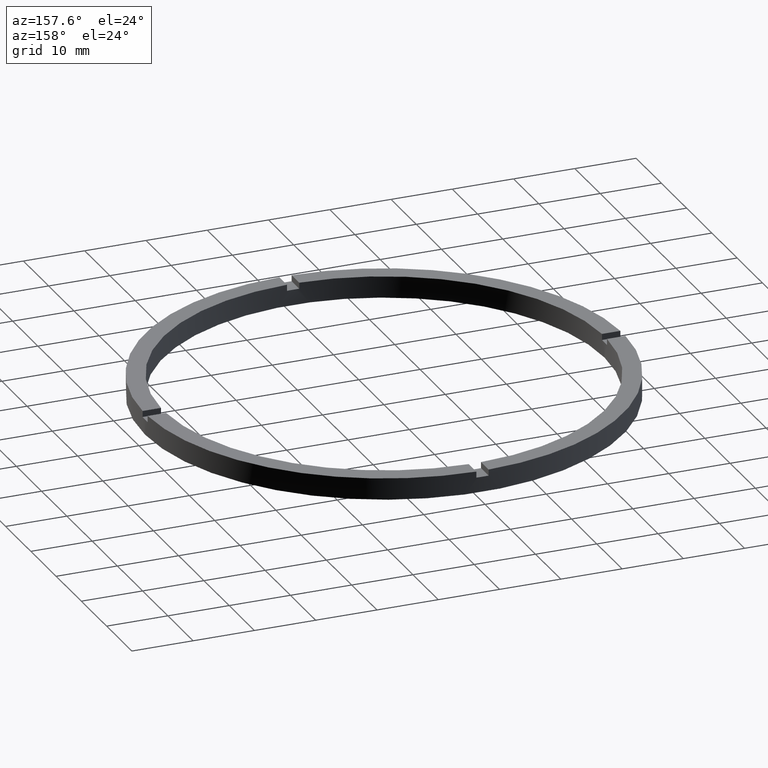
[diagram: clean part render]
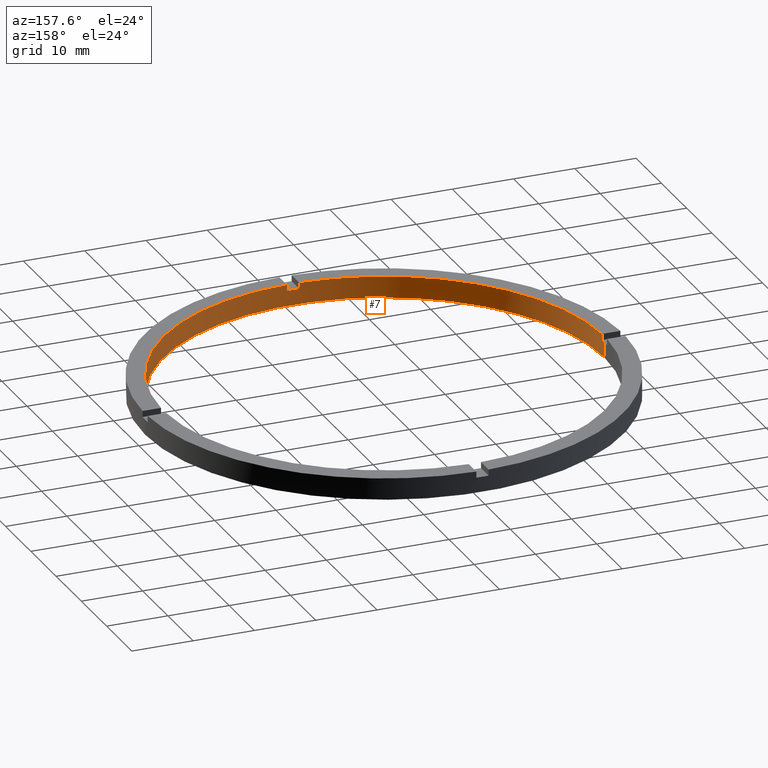
[diagram: same view with one face highlighted and labeled with its STEP entity id]
A machine part, auxiliary view. The second image highlights one B-rep face of the part: STEP entity #7.
In plain terms, the highlighted cylindrical surface (partial cylindrical patch) has radius 36 mm, axis along (-0, -0, -1).
Its self-contained STEP definition (entity closure, byte-faithful):
#4 = EDGE_CURVE ( 'NONE', #248, #113, #143, .T. ) ;
#7 = ADVANCED_FACE ( 'NONE', ( #655 ), #149, .F. ) ;
#23 = EDGE_CURVE ( 'NONE', #488, #410, #404, .T. ) ;
#40 = VECTOR ( 'NONE', #359, 1000.000000000000000 ) ;
#49 = DIRECTION ( 'NONE',  ( -0.000000000000000000, -0.000000000000000000, -1.000000000000000000 ) ) ;
#51 = CARTESIAN_POINT ( 'NONE',  ( 0.000000000000000000, 0.000000000000000000, 0.000000000000000000 ) ) ;
#63 = DIRECTION ( 'NONE',  ( -0.000000000000000000, -0.000000000000000000, -1.000000000000000000 ) ) ;
#64 = VECTOR ( 'NONE', #63, 1000.000000000000000 ) ;
#65 = CIRCLE ( 'NONE', #713, 36.00000000000000000 ) ;
#72 = LINE ( 'NONE', #145, #348 ) ;
#80 = LINE ( 'NONE', #461, #608 ) ;
#83 = CARTESIAN_POINT ( 'NONE',  ( -36.00000000000000000, 0.000000000000000000, 0.000000000000000000 ) ) ;
#113 = VERTEX_POINT ( 'NONE', #552 ) ;
#129 = AXIS2_PLACEMENT_3D ( 'NONE', #131, #184, #536 ) ;
#131 = CARTESIAN_POINT ( 'NONE',  ( 0.000000000000000000, 0.000000000000000000, 3.500000000000000000 ) ) ;
#143 = CIRCLE ( 'NONE', #685, 36.00000000000000000 ) ;
#145 = CARTESIAN_POINT ( 'NONE',  ( 36.00000000000000000, 4.408728476930470856E-15, 3.500000000000000000 ) ) ;
#148 = CARTESIAN_POINT ( 'NONE',  ( 0.9999999999998404610, -35.98610843089316091, 2.500000000000000000 ) ) ;
#149 = CYLINDRICAL_SURFACE ( 'NONE', #678, 36.00000000000000000 ) ;
#159 = CARTESIAN_POINT ( 'NONE',  ( 0.000000000000000000, 0.000000000000000000, 2.500000000000000000 ) ) ;
#168 = DIRECTION ( 'NONE',  ( 0.000000000000000000, 0.000000000000000000, 1.000000000000000000 ) ) ;
#170 = CARTESIAN_POINT ( 'NONE',  ( -1.000000000000159650, -35.98610843089315381, 3.500000000000000000 ) ) ;
#173 = CARTESIAN_POINT ( 'NONE',  ( -36.00000000000000000, 0.000000000000000000, 3.500000000000000000 ) ) ;
#181 = DIRECTION ( 'NONE',  ( 0.000000000000000000, 0.000000000000000000, 1.000000000000000000 ) ) ;
#184 = DIRECTION ( 'NONE',  ( 0.000000000000000000, 0.000000000000000000, 1.000000000000000000 ) ) ;
#188 = AXIS2_PLACEMENT_3D ( 'NONE', #51, #181, #518 ) ;
#189 = VERTEX_POINT ( 'NONE', #588 ) ;
#191 = DIRECTION ( 'NONE',  ( 1.000000000000000000, 0.000000000000000000, 0.000000000000000000 ) ) ;
#199 = DIRECTION ( 'NONE',  ( 0.000000000000000000, 0.000000000000000000, 1.000000000000000000 ) ) ;
#200 = DIRECTION ( 'NONE',  ( -0.000000000000000000, 0.000000000000000000, 1.000000000000000000 ) ) ;
#208 = DIRECTION ( 'NONE',  ( -0.000000000000000000, -0.000000000000000000, -1.000000000000000000 ) ) ;
#220 = ORIENTED_EDGE ( 'NONE', *, *, #370, .F. ) ;
#248 = VERTEX_POINT ( 'NONE', #731 ) ;
#249 = ORIENTED_EDGE ( 'NONE', *, *, #311, .F. ) ;
#259 = CARTESIAN_POINT ( 'NONE',  ( 35.98610843089315381, -1.000000000000157430, 3.500000000000000000 ) ) ;
#262 = DIRECTION ( 'NONE',  ( 0.000000000000000000, 0.000000000000000000, 1.000000000000000000 ) ) ;
#271 = DIRECTION ( 'NONE',  ( 1.000000000000000000, 0.000000000000000000, 0.000000000000000000 ) ) ;
#273 = CARTESIAN_POINT ( 'NONE',  ( 0.000000000000000000, 0.000000000000000000, 3.500000000000000000 ) ) ;
#298 = EDGE_CURVE ( 'NONE', #415, #693, #314, .T. ) ;
#306 = CARTESIAN_POINT ( 'NONE',  ( -1.000000000000159650, -35.98610843089315381, 2.500000000000000000 ) ) ;
#311 = EDGE_CURVE ( 'NONE', #248, #644, #573, .T. ) ;
#314 = LINE ( 'NONE', #428, #40 ) ;
#315 = CARTESIAN_POINT ( 'NONE',  ( -35.98610843089315381, -1.000000000000027311, 3.500000000000000000 ) ) ;
#322 = DIRECTION ( 'NONE',  ( 0.000000000000000000, 0.000000000000000000, 1.000000000000000000 ) ) ;
#328 = CIRCLE ( 'NONE', #539, 36.00000000000000000 ) ;
#332 = CIRCLE ( 'NONE', #188, 36.00000000000000000 ) ;
#342 = EDGE_CURVE ( 'NONE', #488, #693, #328, .T. ) ;
#348 = VECTOR ( 'NONE', #564, 1000.000000000000000 ) ;
#359 = DIRECTION ( 'NONE',  ( -0.000000000000000000, -0.000000000000000000, -1.000000000000000000 ) ) ;
#360 = CIRCLE ( 'NONE', #781, 36.00000000000000000 ) ;
#363 = CARTESIAN_POINT ( 'NONE',  ( 0.9999999999998404610, -35.98610843089316091, 3.500000000000000000 ) ) ;
#370 = EDGE_CURVE ( 'NONE', #399, #113, #590, .T. ) ;
#379 = EDGE_CURVE ( 'NONE', #690, #189, #72, .T. ) ;
#397 = DIRECTION ( 'NONE',  ( -1.000000000000000000, 0.000000000000000000, 0.000000000000000000 ) ) ;
#399 = VERTEX_POINT ( 'NONE', #315 ) ;
#403 = ORIENTED_EDGE ( 'NONE', *, *, #23, .F. ) ;
#404 = LINE ( 'NONE', #589, #661 ) ;
#410 = VERTEX_POINT ( 'NONE', #170 ) ;
#411 = VERTEX_POINT ( 'NONE', #259 ) ;
#415 = VERTEX_POINT ( 'NONE', #363 ) ;
#428 = CARTESIAN_POINT ( 'NONE',  ( 0.9999999999998404610, -35.98610843089316091, 3.500000000000000000 ) ) ;
#440 = EDGE_CURVE ( 'NONE', #644, #189, #332, .T. ) ;
#446 = CARTESIAN_POINT ( 'NONE',  ( 0.000000000000000000, 0.000000000000000000, 3.500000000000000000 ) ) ;
#456 = ORIENTED_EDGE ( 'NONE', *, *, #342, .T. ) ;
#457 = ORIENTED_EDGE ( 'NONE', *, *, #4, .T. ) ;
#461 = CARTESIAN_POINT ( 'NONE',  ( 35.98610843089315381, -1.000000000000157430, 3.500000000000000000 ) ) ;
#464 = ORIENTED_EDGE ( 'NONE', *, *, #379, .T. ) ;
#466 = ORIENTED_EDGE ( 'NONE', *, *, #576, .T. ) ;
#481 = EDGE_CURVE ( 'NONE', #664, #411, #80, .T. ) ;
#488 = VERTEX_POINT ( 'NONE', #306 ) ;
#489 = ORIENTED_EDGE ( 'NONE', *, *, #440, .F. ) ;
#518 = DIRECTION ( 'NONE',  ( 1.000000000000000000, 0.000000000000000000, 0.000000000000000000 ) ) ;
#523 = DIRECTION ( 'NONE',  ( 0.000000000000000000, 0.000000000000000000, 1.000000000000000000 ) ) ;
#536 = DIRECTION ( 'NONE',  ( 1.000000000000000000, 0.000000000000000000, 0.000000000000000000 ) ) ;
#539 = AXIS2_PLACEMENT_3D ( 'NONE', #607, #200, #271 ) ;
#552 = CARTESIAN_POINT ( 'NONE',  ( -35.98610843089315381, -1.000000000000027311, 2.500000000000000000 ) ) ;
#554 = EDGE_CURVE ( 'NONE', #399, #410, #584, .T. ) ;
#564 = DIRECTION ( 'NONE',  ( -0.000000000000000000, -0.000000000000000000, -1.000000000000000000 ) ) ;
#573 = LINE ( 'NONE', #173, #64 ) ;
#576 = EDGE_CURVE ( 'NONE', #664, #690, #65, .T. ) ;
#584 = CIRCLE ( 'NONE', #129, 36.00000000000000000 ) ;
#588 = CARTESIAN_POINT ( 'NONE',  ( 36.00000000000000000, 4.408728476930470856E-15, 0.000000000000000000 ) ) ;
#589 = CARTESIAN_POINT ( 'NONE',  ( -1.000000000000159650, -35.98610843089315381, 3.500000000000000000 ) ) ;
#590 = LINE ( 'NONE', #648, #592 ) ;
#592 = VECTOR ( 'NONE', #208, 1000.000000000000000 ) ;
#598 = CARTESIAN_POINT ( 'NONE',  ( 0.000000000000000000, 0.000000000000000000, 2.500000000000000000 ) ) ;
#607 = CARTESIAN_POINT ( 'NONE',  ( 0.000000000000000000, 0.000000000000000000, 2.500000000000000000 ) ) ;
#608 = VECTOR ( 'NONE', #523, 1000.000000000000000 ) ;
#644 = VERTEX_POINT ( 'NONE', #83 ) ;
#647 = DIRECTION ( 'NONE',  ( 1.000000000000000000, 0.000000000000000000, 0.000000000000000000 ) ) ;
#648 = CARTESIAN_POINT ( 'NONE',  ( -35.98610843089315381, -1.000000000000027311, 3.500000000000000000 ) ) ;
#651 = ORIENTED_EDGE ( 'NONE', *, *, #554, .T. ) ;
#653 = EDGE_CURVE ( 'NONE', #415, #411, #360, .T. ) ;
#655 = FACE_OUTER_BOUND ( 'NONE', #723, .T. ) ;
#661 = VECTOR ( 'NONE', #322, 1000.000000000000000 ) ;
#663 = CARTESIAN_POINT ( 'NONE',  ( 35.98610843089315381, -1.000000000000157430, 2.500000000000000000 ) ) ;
#664 = VERTEX_POINT ( 'NONE', #663 ) ;
#678 = AXIS2_PLACEMENT_3D ( 'NONE', #446, #49, #397 ) ;
#685 = AXIS2_PLACEMENT_3D ( 'NONE', #159, #168, #779 ) ;
#690 = VERTEX_POINT ( 'NONE', #751 ) ;
#693 = VERTEX_POINT ( 'NONE', #148 ) ;
#713 = AXIS2_PLACEMENT_3D ( 'NONE', #598, #262, #647 ) ;
#717 = ORIENTED_EDGE ( 'NONE', *, *, #481, .F. ) ;
#723 = EDGE_LOOP ( 'NONE', ( #466, #464, #489, #249, #457, #220, #651, #403, #456, #768, #772, #717 ) ) ;
#731 = CARTESIAN_POINT ( 'NONE',  ( -36.00000000000000000, 0.000000000000000000, 2.500000000000000000 ) ) ;
#751 = CARTESIAN_POINT ( 'NONE',  ( 36.00000000000000000, 4.408728476930470856E-15, 2.500000000000000000 ) ) ;
#768 = ORIENTED_EDGE ( 'NONE', *, *, #298, .F. ) ;
#772 = ORIENTED_EDGE ( 'NONE', *, *, #653, .T. ) ;
#779 = DIRECTION ( 'NONE',  ( 1.000000000000000000, 0.000000000000000000, 0.000000000000000000 ) ) ;
#781 = AXIS2_PLACEMENT_3D ( 'NONE', #273, #199, #191 ) ;